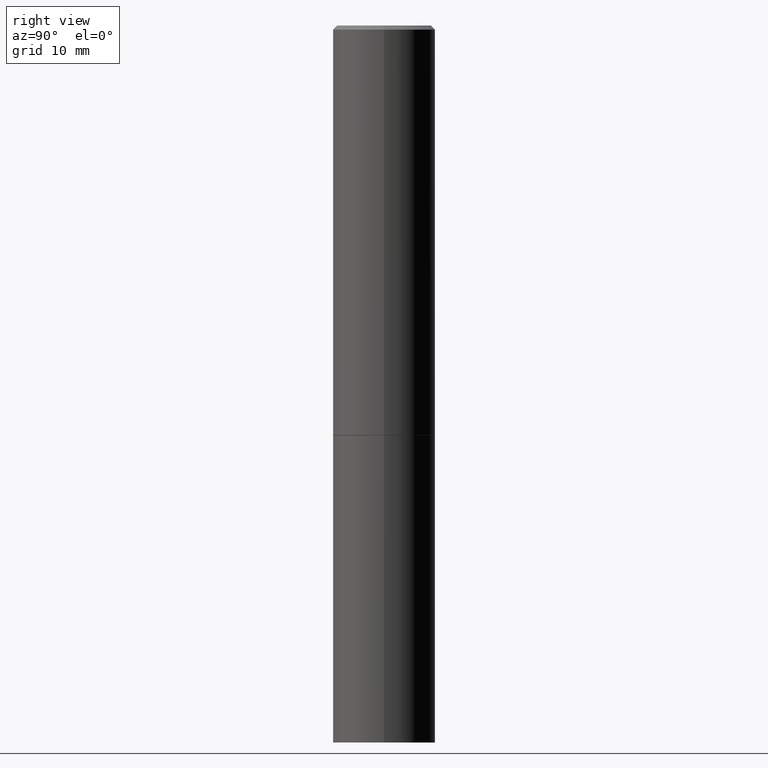
[diagram: clean part render]
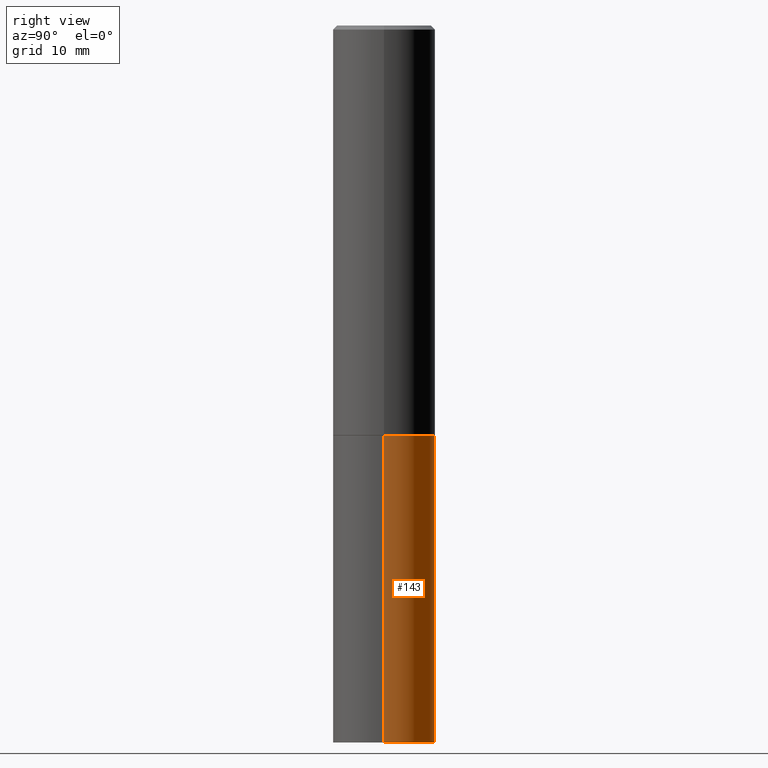
[diagram: same view with one face highlighted and labeled with its STEP entity id]
A machine part, right view. The second image highlights one B-rep face of the part: STEP entity #143.
In plain terms, the highlighted cylindrical surface (partial cylindrical patch) has radius 6.35 mm, axis along (-0, 0, 1).
Its self-contained STEP definition (entity closure, byte-faithful):
#5 = CARTESIAN_POINT ( 'NONE',  ( 0.2500000000000000000, -1.745740669421566678E-15, 1.219044193948983948E-29 ) ) ;
#14 = ORIENTED_EDGE ( 'NONE', *, *, #331, .F. ) ;
#20 = EDGE_CURVE ( 'NONE', #90, #362, #123, .T. ) ;
#22 = VECTOR ( 'NONE', #262, 39.37007874015748143 ) ;
#29 = ORIENTED_EDGE ( 'NONE', *, *, #305, .T. ) ;
#34 = CARTESIAN_POINT ( 'NONE',  ( 0.000000000000000000, 0.000000000000000000, 0.000000000000000000 ) ) ;
#48 = CIRCLE ( 'NONE', #135, 0.2500000000000000000 ) ;
#66 = DIRECTION ( 'NONE',  ( 1.000000000000000000, -6.982962677686266711E-15, 0.000000000000000000 ) ) ;
#72 = VERTEX_POINT ( 'NONE', #200 ) ;
#90 = VERTEX_POINT ( 'NONE', #239 ) ;
#91 = CARTESIAN_POINT ( 'NONE',  ( -0.2500000000000000000, -7.825216842418397817E-15, -1.999999999999999778 ) ) ;
#97 = AXIS2_PLACEMENT_3D ( 'NONE', #201, #266, #149 ) ;
#116 = DIRECTION ( 'NONE',  ( -2.445468806185136877E-29, 3.491481338843145188E-15, 1.000000000000000000 ) ) ;
#117 = CARTESIAN_POINT ( 'NONE',  ( 0.2500000000000000000, -8.728703347107857054E-15, -1.999999999999999778 ) ) ;
#123 = LINE ( 'NONE', #259, #256 ) ;
#124 = LINE ( 'NONE', #5, #22 ) ;
#128 = FACE_OUTER_BOUND ( 'NONE', #260, .T. ) ;
#135 = AXIS2_PLACEMENT_3D ( 'NONE', #161, #293, #66 ) ;
#143 = ADVANCED_FACE ( 'NONE', ( #128 ), #160, .T. ) ;
#149 = DIRECTION ( 'NONE',  ( 1.000000000000000000, -6.982962677686270655E-15, 0.000000000000000000 ) ) ;
#157 = AXIS2_PLACEMENT_3D ( 'NONE', #34, #221, #275 ) ;
#159 = EDGE_CURVE ( 'NONE', #357, #362, #48, .T. ) ;
#160 = CYLINDRICAL_SURFACE ( 'NONE', #157, 0.2500000000000000000 ) ;
#161 = CARTESIAN_POINT ( 'NONE',  ( 4.890937612370272633E-29, -6.982962677686290376E-15, -1.999999999999999778 ) ) ;
#180 = ORIENTED_EDGE ( 'NONE', *, *, #159, .F. ) ;
#195 = CIRCLE ( 'NONE', #97, 0.2500000000000000000 ) ;
#200 = CARTESIAN_POINT ( 'NONE',  ( 0.2500000000000000000, -1.396592535537257602E-14, -3.500000000000000000 ) ) ;
#201 = CARTESIAN_POINT ( 'NONE',  ( 8.559140821647976968E-29, -1.222018468595100934E-14, -3.500000000000000000 ) ) ;
#221 = DIRECTION ( 'NONE',  ( -2.445468806185136597E-29, 3.491481338843145583E-15, 1.000000000000000000 ) ) ;
#239 = CARTESIAN_POINT ( 'NONE',  ( -0.2500000000000000000, -7.825216842418397817E-15, -3.500000000000000000 ) ) ;
#256 = VECTOR ( 'NONE', #116, 39.37007874015748143 ) ;
#259 = CARTESIAN_POINT ( 'NONE',  ( -0.2500000000000000000, 1.776356839400250465E-15, -1.229733772563726445E-29 ) ) ;
#260 = EDGE_LOOP ( 'NONE', ( #29, #310, #180, #14 ) ) ;
#262 = DIRECTION ( 'NONE',  ( -2.445468806185136877E-29, 3.491481338843145188E-15, 1.000000000000000000 ) ) ;
#266 = DIRECTION ( 'NONE',  ( -2.445468806185136597E-29, 3.491481338843145583E-15, 1.000000000000000000 ) ) ;
#275 = DIRECTION ( 'NONE',  ( 1.000000000000000000, -6.982962677686266711E-15, 4.876176775795935793E-29 ) ) ;
#293 = DIRECTION ( 'NONE',  ( -2.445468806185136597E-29, 3.491481338843145583E-15, 1.000000000000000000 ) ) ;
#305 = EDGE_CURVE ( 'NONE', #72, #90, #195, .T. ) ;
#310 = ORIENTED_EDGE ( 'NONE', *, *, #20, .T. ) ;
#331 = EDGE_CURVE ( 'NONE', #72, #357, #124, .T. ) ;
#357 = VERTEX_POINT ( 'NONE', #117 ) ;
#362 = VERTEX_POINT ( 'NONE', #91 ) ;